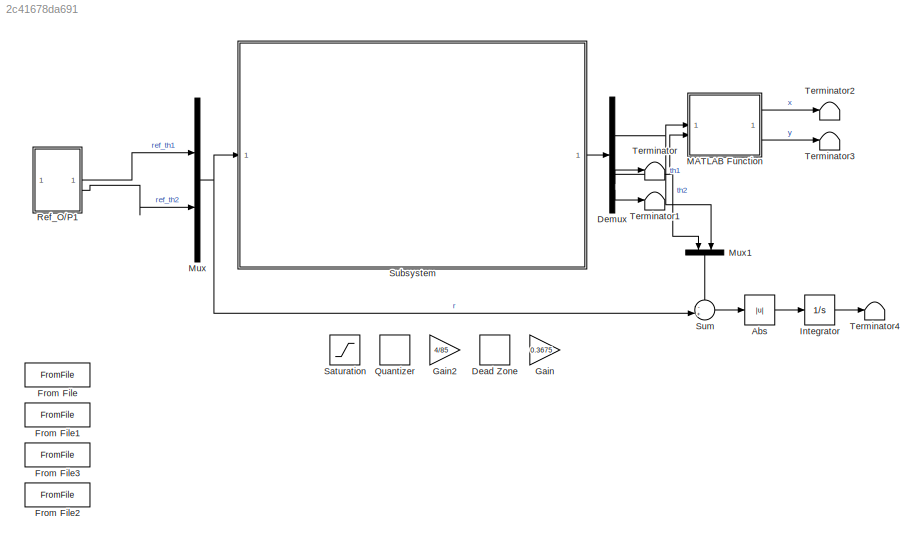
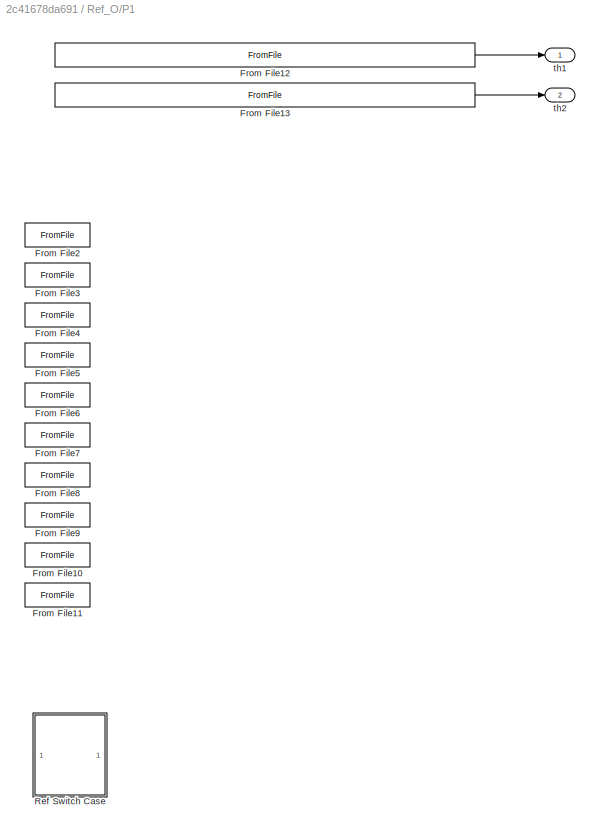
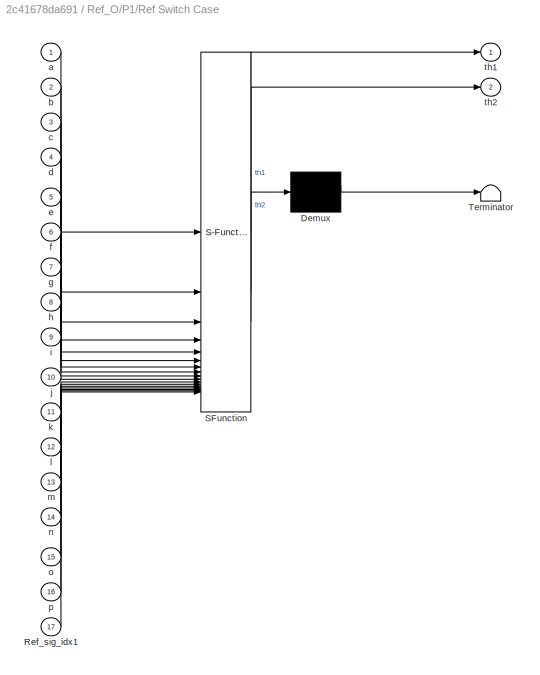
MODEL slx_2c41678da691
KIND model
CONFIG AbsTol = auto
CONFIG EnableMultiTasking = off
CONFIG FixedStep = 0.02
CONFIG MaxStep = auto
CONFIG MinStep = auto
CONFIG PreLoadFcn = addpath("ref_source\2s\")
CONFIG RelTol = 1e-3
CONFIG SampleTimeConstraint = Unconstrained
CONFIG SolverName = VariableStepAuto
CONFIG StartTime = 0.0
CONFIG StopTime = 4
WORKSPACE source: mxarray member
WORKSPACE Ref_sig_idx = 2
BLOCK [Abs] Abs
  SaturateOnIntegerOverflow = off
BLOCK [DeadZone] Dead Zone
  Commented = on
  LowerValue = -2.1
  UpperValue = 2.1
BLOCK [Demux] Demux
BLOCK [FromFile] From File
  Commented = on
  FileName = ref_th1.mat
  SampleTime = 0
BLOCK [FromFile] From File1
  Commented = on
  FileName = ref_th2.mat
  SampleTime = 0
BLOCK [FromFile] From File2
  Commented = on
  FileName = ref_dth2.mat
  SampleTime = 0
BLOCK [FromFile] From File3
  Commented = on
  FileName = ref_dth1.mat
  SampleTime = 0
BLOCK [Gain] Gain
  Commented = on
  Gain = 0.3675
BLOCK [Gain] Gain2
  Commented = on
  Gain = 4/85
BLOCK [Integrator] Integrator
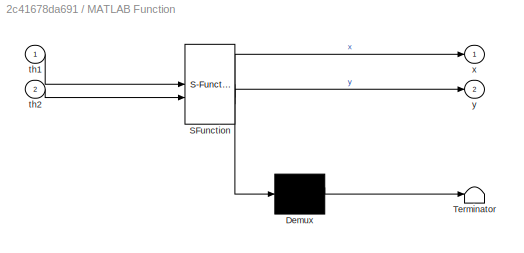
BLOCK [SubSystem] MATLAB Function
  ErrorFcn = Stateflow.Translate.translate
  PermitHierarchicalResolution = ExplicitOnly
  SFBlockType = MATLAB Function
  TreatAsAtomicUnit = on
BLOCK [Demux] MATLAB Function/ Demux 
  Outputs = 1
BLOCK [S-Function] MATLAB Function/ SFunction 
  EnableBusSupport = on
  FunctionName = sf_sfun
  Parameters = L1,L2
  PortCounts = [2 3]
  SFcnIsStateOwnerBlock = off
  SFunctionDeploymentMode = off
  Tag = Stateflow S-Function 2
BLOCK [Terminator] MATLAB Function/ Terminator 
BLOCK [Inport] MATLAB Function/th1
BLOCK [Inport] MATLAB Function/th2
  Port = 2
BLOCK [Outport] MATLAB Function/x
BLOCK [Outport] MATLAB Function/y
  Port = 2
BLOCK [Mux] Mux
  DisplayOption = bar
  Inputs = 2
BLOCK [Mux] Mux1
  DisplayOption = bar
  Inputs = 2
  NameLocation = left
BLOCK [Quantizer] Quantizer
  Commented = on
  QuantizationInterval = 1
BLOCK [SubSystem] Ref_O//P1
BLOCK [FromFile] Ref_O//P1/From File10
  Commented = on
  FileName = ref_tri_bs_th1.mat
  SampleTime = 0
BLOCK [FromFile] Ref_O//P1/From File11
  Commented = on
  FileName = ref_tri_bs_th2.mat
  SampleTime = 0
BLOCK [FromFile] Ref_O//P1/From File12
  FileName = <userpath>\Documents\Arduino\MVNLC\control\Uni2024_MVNLC\Simulink_Simulation\ref_source\2s_double\ref_circ_th1.mat
  SampleTime = 0
BLOCK [FromFile] Ref_O//P1/From File13
  FileName = <userpath>\Documents\Arduino\MVNLC\control\Uni2024_MVNLC\Simulink_Simulation\ref_source\2s_double\ref_circ_th2.mat
  SampleTime = 0
BLOCK [FromFile] Ref_O//P1/From File2
  Commented = on
  FileName = ref_sq_th1.mat
  SampleTime = 0
BLOCK [FromFile] Ref_O//P1/From File3
  Commented = on
  FileName = ref_sq_th2.mat
  SampleTime = 0
BLOCK [FromFile] Ref_O//P1/From File4
  Commented = on
  FileName = ref_tri_th1.mat
  SampleTime = 0
BLOCK [FromFile] Ref_O//P1/From File5
  Commented = on
  FileName = ref_tri_th2.mat
  SampleTime = 0
BLOCK [FromFile] Ref_O//P1/From File6
  Commented = on
  FileName = ref_circ_bs_th1.mat
  SampleTime = 0
BLOCK [FromFile] Ref_O//P1/From File7
  Commented = on
  FileName = ref_circ_bs_th2.mat
  SampleTime = 0
BLOCK [FromFile] Ref_O//P1/From File8
  Commented = on
  FileName = ref_sq_bs_th1.mat
  SampleTime = 0
BLOCK [FromFile] Ref_O//P1/From File9
  Commented = on
  FileName = ref_sq_bs_th2.mat
  SampleTime = 0
BLOCK [SubSystem] Ref_O//P1/Ref Switch Case
  Commented = on
  ErrorFcn = Stateflow.Translate.translate
  PermitHierarchicalResolution = ExplicitOnly
  SFBlockType = MATLAB Function
  TreatAsAtomicUnit = on
BLOCK [Demux] Ref_O//P1/Ref Switch Case/ Demux 
  Outputs = 1
BLOCK [S-Function] Ref_O//P1/Ref Switch Case/ SFunction 
  EnableBusSupport = on
  FunctionName = sf_sfun
  Parameters = Ref_sig_idx
  PortCounts = [17 3]
  SFcnIsStateOwnerBlock = off
  SFunctionDeploymentMode = off
  Tag = Stateflow S-Function 3
BLOCK [Terminator] Ref_O//P1/Ref Switch Case/ Terminator 
BLOCK [Inport] Ref_O//P1/Ref Switch Case/Ref_sig_idx1
  Port = 17
BLOCK [Inport] Ref_O//P1/Ref Switch Case/a
BLOCK [Inport] Ref_O//P1/Ref Switch Case/b
  Port = 2
BLOCK [Inport] Ref_O//P1/Ref Switch Case/c
  Port = 3
BLOCK [Inport] Ref_O//P1/Ref Switch Case/d
  Port = 4
BLOCK [Inport] Ref_O//P1/Ref Switch Case/e
  Port = 5
BLOCK [Inport] Ref_O//P1/Ref Switch Case/f
  Port = 6
BLOCK [Inport] Ref_O//P1/Ref Switch Case/g
  Port = 7
BLOCK [Inport] Ref_O//P1/Ref Switch Case/h
  Port = 8
BLOCK [Inport] Ref_O//P1/Ref Switch Case/i
  Port = 9
BLOCK [Inport] Ref_O//P1/Ref Switch Case/j
  Port = 10
BLOCK [Inport] Ref_O//P1/Ref Switch Case/k
  Port = 11
BLOCK [Inport] Ref_O//P1/Ref Switch Case/l
  Port = 12
BLOCK [Inport] Ref_O//P1/Ref Switch Case/m
  Port = 13
BLOCK [Inport] Ref_O//P1/Ref Switch Case/n
  Port = 14
BLOCK [Inport] Ref_O//P1/Ref Switch Case/o
  Port = 15
BLOCK [Inport] Ref_O//P1/Ref Switch Case/p
  Port = 16
BLOCK [Outport] Ref_O//P1/Ref Switch Case/th1
BLOCK [Outport] Ref_O//P1/Ref Switch Case/th2
  Port = 2
BLOCK [Outport] Ref_O//P1/th1
BLOCK [Outport] Ref_O//P1/th2
  Port = 2
BLOCK [Saturate] Saturation
  Commented = on
  LowerLimit = -255
  UpperLimit = 255
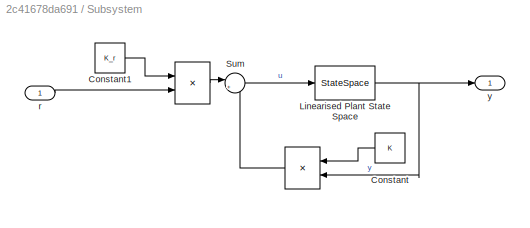
BLOCK [SubSystem] Subsystem
BLOCK [Product] Subsystem/ 
  Multiplication = Matrix(*)
BLOCK [Product] Subsystem/   
  Multiplication = Matrix(*)
  NameLocation = top
BLOCK [Constant] Subsystem/Constant
  NameLocation = top
  Value = K
BLOCK [Constant] Subsystem/Constant1
  Value = K_r
BLOCK [StateSpace] Subsystem/Linearised Plant State Space
  A = A
  B = B
  C = C
  D = D
  InitialCondition = [30, -30, 0 , 0]
BLOCK [Sum] Subsystem/Sum
  Inputs = |+-
BLOCK [Inport] Subsystem/r
BLOCK [Outport] Subsystem/y
BLOCK [Sum] Sum
  Inputs = -+|
BLOCK [Terminator] Terminator
BLOCK [Terminator] Terminator1
BLOCK [Terminator] Terminator2
BLOCK [Terminator] Terminator3
BLOCK [Terminator] Terminator4
LINE Abs:1 -> Integrator:1
NET Demux:1 -> MATLAB Function:1, Mux1:2
NET Demux:2 -> MATLAB Function:2, Mux1:1
LINE Demux:3 -> Terminator:1
LINE Demux:4 -> Terminator1:1
LINE Integrator:1 -> Terminator4:1
LINE MATLAB Function:1 -> Terminator2:1
LINE MATLAB Function:2 -> Terminator3:1
LINE Mux1:1 -> Sum:1
NET Mux:1 -> Subsystem:1, Sum:2
LINE Ref_O//P1/From File12:1 -> Ref_O//P1/th1:1
LINE Ref_O//P1/From File13:1 -> Ref_O//P1/th2:1
LINE Ref_O//P1:1 -> Mux:1
LINE Ref_O//P1:2 -> Mux:2
LINE Subsystem/   :1 -> Subsystem/Sum:2
LINE Subsystem/ :1 -> Subsystem/Sum:1
LINE Subsystem/Constant1:1 -> Subsystem/ :1
LINE Subsystem/Constant:1 -> Subsystem/   :1
NET Subsystem/Linearised Plant State Space:1 -> Subsystem/   :2, Subsystem/y:1
LINE Subsystem/Sum:1 -> Subsystem/Linearised Plant State Space:1
LINE Subsystem/r:1 -> Subsystem/ :2
LINE Subsystem:1 -> Demux:1
LINE Sum:1 -> Abs:1
note: NET lines group one-source signal fan-out (src -> all destinations, sorted); 1:1 wires keep LINE
CHART MATLAB Function states=1 transitions=1
  STATE_LABEL 'eML_blk_kernel()'
  STATE_LABEL 'SCRIPT:\nfunction [x,y] = th_to_xy(th1, th2, L1, L2)\n    x = L1*cos(deg2rad(th1)) + L2*cos(deg2rad(th2));\n    y = L1*sin(deg2rad(th1)) + L2*sin(deg2rad(th2));\n'
CHART Ref_O//P1/Ref Switch Case states=1 transitions=1
  STATE_LABEL 'eML_blk_kernel()'
  STATE_LABEL 'SCRIPT:\nfunction [th1, th2] = ref_switch(Ref_sig_idx, a, b, c, d, e, f, g, h, i, j, k, l, m, n, o, p, Ref_sig_idx1)\n    if Ref_sig_idx == 0\n        % circ base\n        th1 = a;\n        th2 = b;\n    elseif Ref_sig_idx == 1\n        % sq base\n        th1 = c;\n        th2 = d;\n    elseif Ref_sig_idx == 2\n        % tri base\n        th1 = e;\n        th2 = f;\n    end\n    if Ref_sig_idx == 3\n        % cir...<+531ch>'
CHART  states=0 transitions=0
CHART  states=0 transitions=0
